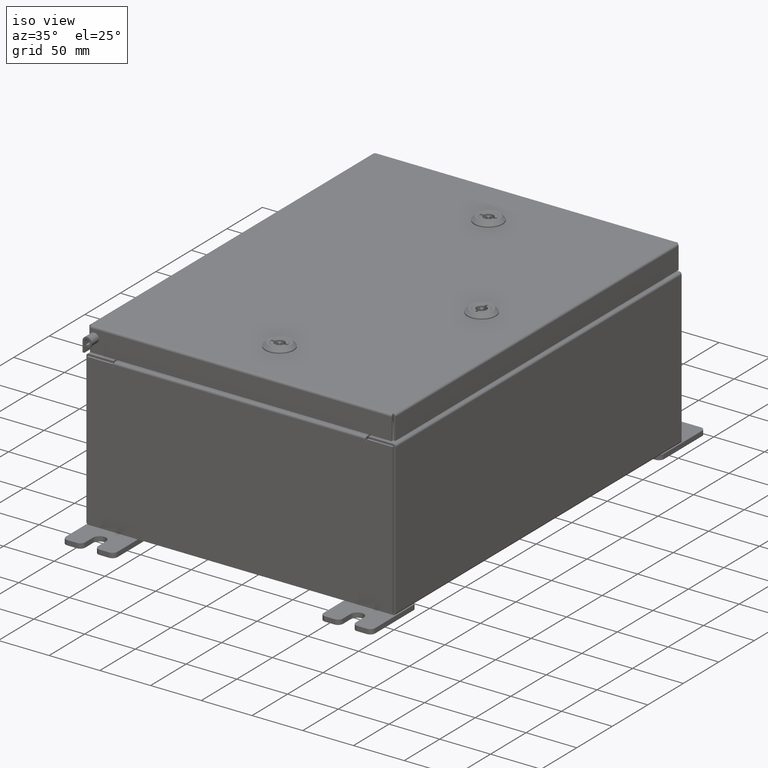
[diagram: clean part render]
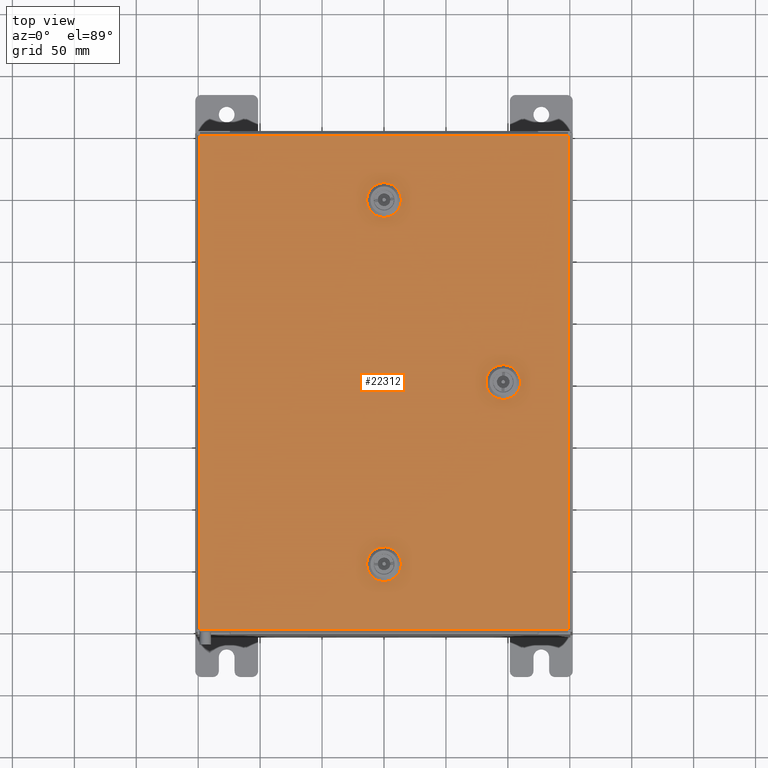
[diagram: tour spotlight — one face highlighted and labeled with its STEP entity id]
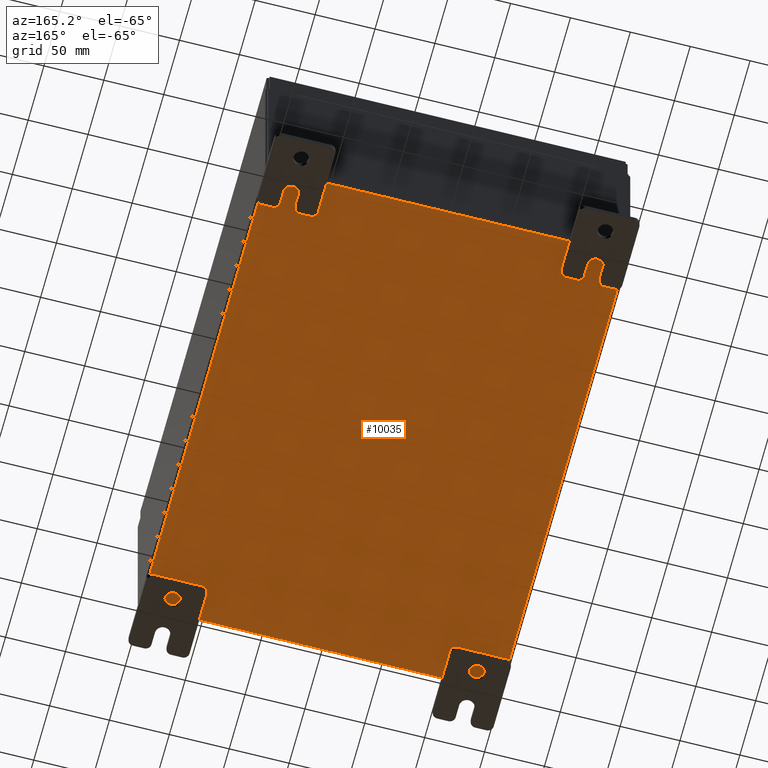
[diagram: tour spotlight — one face highlighted and labeled with its STEP entity id]
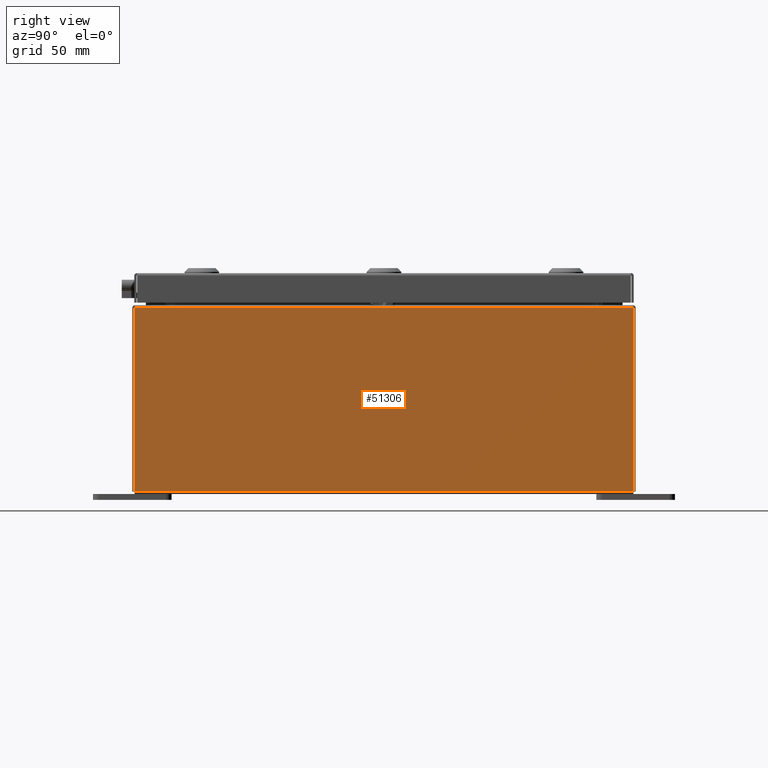
[diagram: tour spotlight — one face highlighted and labeled with its STEP entity id]
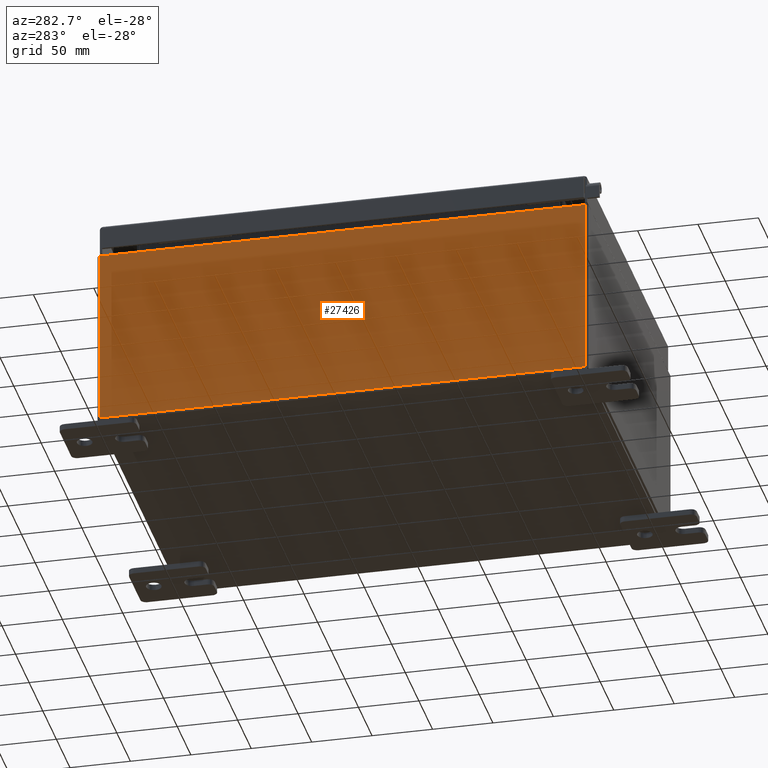
[diagram: tour spotlight — one face highlighted and labeled with its STEP entity id]
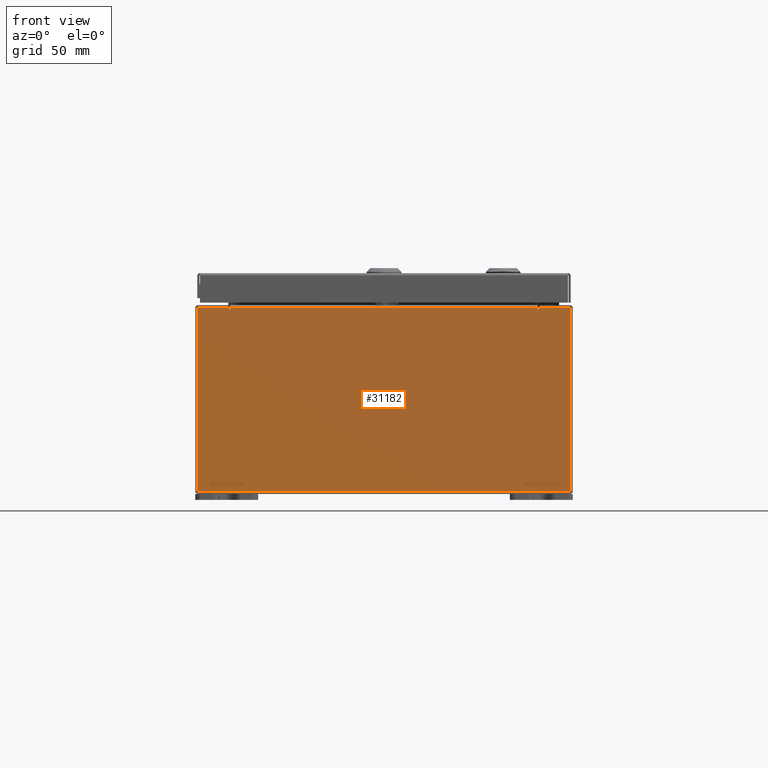
[diagram: tour spotlight — one face highlighted and labeled with its STEP entity id]
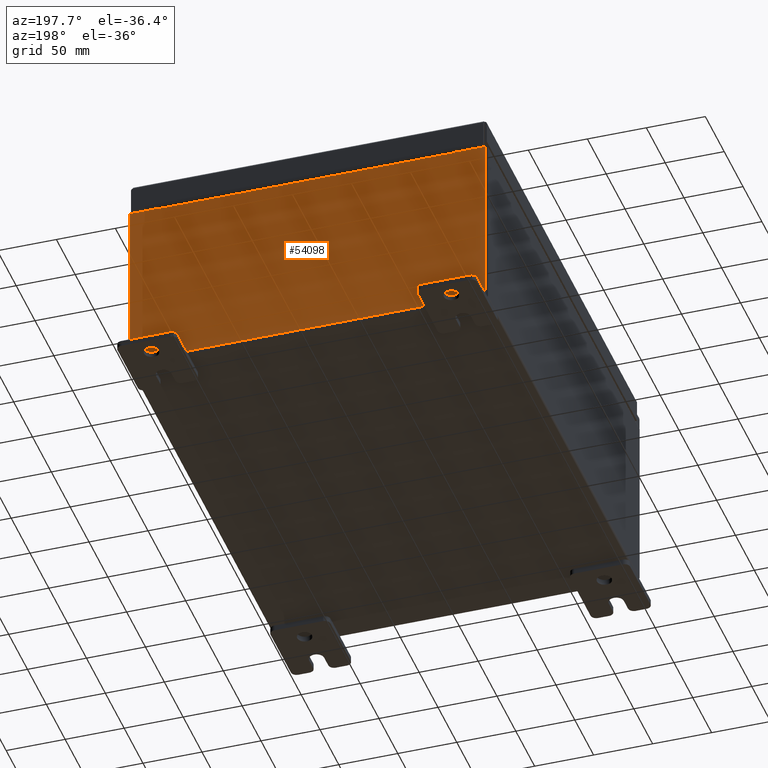
[diagram: tour spotlight — one face highlighted and labeled with its STEP entity id]
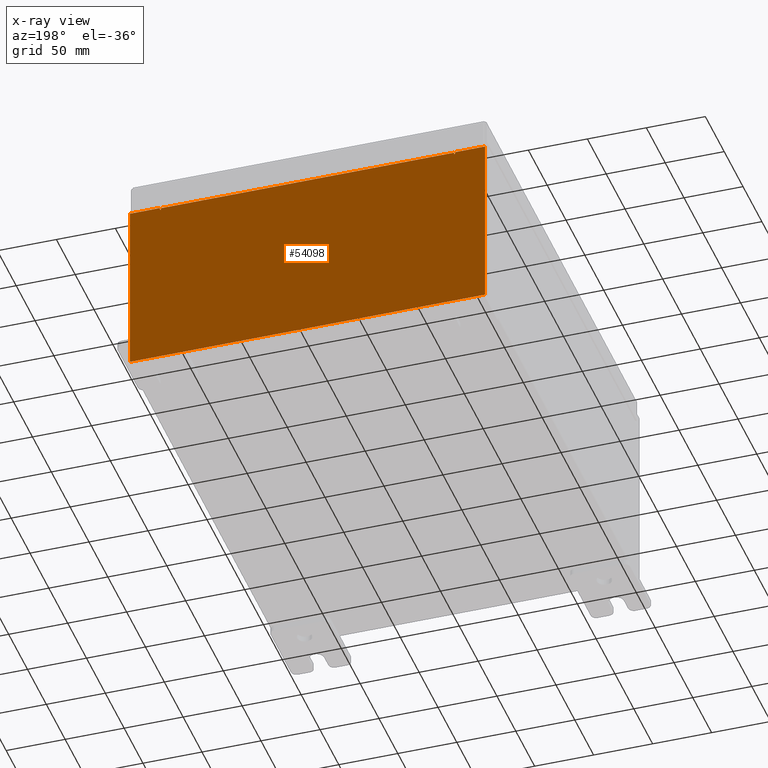
[diagram: x-ray of the same camera — body ghosted, this tour face saturated]
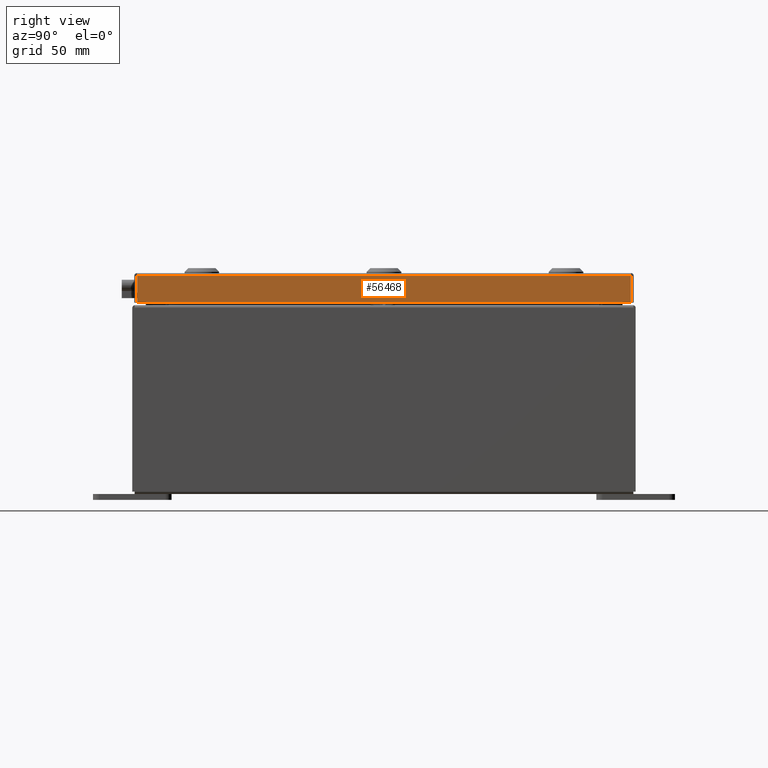
[diagram: tour spotlight — one face highlighted and labeled with its STEP entity id]
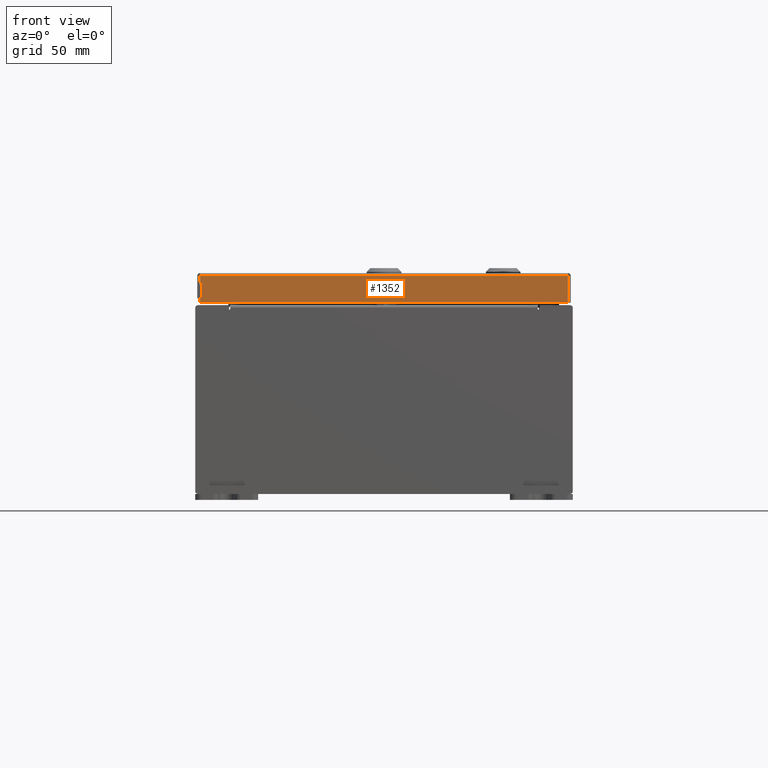
[diagram: tour spotlight — one face highlighted and labeled with its STEP entity id]
A machine part: a face-by-face anatomy tour. The part has 2902 B-rep faces; the first image is the clean iso view, then the 8 largest visible faces are spotlighted one at a time (largest first), each with its STEP entity span.

Face 1 — top view, entity #22312. In plain terms, the highlighted planar face has unit normal (0, 0, -1).
Definition (entity closure, byte-faithful):
#643 = DIRECTION ( 'NONE',  ( 1.000000000000000000, 0.0000000000000000000, 0.0000000000000000000 ) ) ;
#784 = VERTEX_POINT ( 'NONE', #13937 ) ;
#851 = EDGE_CURVE ( 'NONE', #11975, #784, #24934, .T. ) ;
#1834 = CIRCLE ( 'NONE', #60677, 0.4424999999999972800 ) ;
#1917 = ORIENTED_EDGE ( 'NONE', *, *, #56111, .F. ) ;
#2215 = DIRECTION ( 'NONE',  ( -1.000000000000000000, -0.0000000000000000000, -0.0000000000000000000 ) ) ;
#2372 = EDGE_CURVE ( 'NONE', #9604, #14910, #32812, .T. ) ;
#2839 = ORIENTED_EDGE ( 'NONE', *, *, #54834, .T. ) ;
#2981 = DIRECTION ( 'NONE',  ( 1.000000000000000000, 1.369674334534795400E-014, 9.732121487607481600E-029 ) ) ;
#4203 = VERTEX_POINT ( 'NONE', #20782 ) ;
#4543 = VERTEX_POINT ( 'NONE', #21791 ) ;
#5051 = CARTESIAN_POINT ( 'NONE',  ( 0.1994523752678995500, -5.392799999999995800, -4.686755060382689600E-014 ) ) ;
#5304 = EDGE_CURVE ( 'NONE', #56415, #28366, #42363, .T. ) ;
#5746 = CARTESIAN_POINT ( 'NONE',  ( 0.4425000000000126100, -5.787799999999992700, -4.962582086151294400E-014 ) ) ;
#5787 = ORIENTED_EDGE ( 'NONE', *, *, #54111, .F. ) ;
#5892 = CARTESIAN_POINT ( 'NONE',  ( -0.1994523752678657400, 6.182799999999989600, 0.0000000000000000000 ) ) ;
#6091 = EDGE_LOOP ( 'NONE', ( #32065, #54204, #14840, #5787, #39595 ) ) ;
#7290 = DIRECTION ( 'NONE',  ( 0.0000000000000000000, 0.0000000000000000000, -1.000000000000000000 ) ) ;
#7775 = CARTESIAN_POINT ( 'NONE',  ( -5.849800000000000100, 7.849800000000000100, -2.048885995248197400E-016 ) ) ;
#8146 = CARTESIAN_POINT ( 'NONE',  ( 1.529834876451987200E-014, 5.787799999999992700, 0.0000000000000000000 ) ) ;
#8178 = AXIS2_PLACEMENT_3D ( 'NONE', #56030, #27429, #60763 ) ;
#9455 = VECTOR ( 'NONE', #43514, 39.37007874015748100 ) ;
#9603 = CARTESIAN_POINT ( 'NONE',  ( 0.1994523752678995500, -5.392799999999995800, -4.686755060382689600E-014 ) ) ;
#9604 = VERTEX_POINT ( 'NONE', #7775 ) ;
#9663 = CARTESIAN_POINT ( 'NONE',  ( 5.849799999999998300, 7.849800000000000100, -2.219626494852214000E-016 ) ) ;
#10373 = EDGE_CURVE ( 'NONE', #51809, #25966, #59592, .T. ) ;
#10570 = EDGE_CURVE ( 'NONE', #14317, #30184, #34241, .T. ) ;
#10788 = ORIENTED_EDGE ( 'NONE', *, *, #40717, .F. ) ;
#11076 = VECTOR ( 'NONE', #17758, 39.37007874015748100 ) ;
#11657 = EDGE_LOOP ( 'NONE', ( #1917, #49493, #56072, #37395 ) ) ;
#11975 = VERTEX_POINT ( 'NONE', #58110 ) ;
#12555 = LINE ( 'NONE', #27301, #11076 ) ;
#12733 = VERTEX_POINT ( 'NONE', #9603 ) ;
#12925 = DIRECTION ( 'NONE',  ( 1.000000000000000000, 0.0000000000000000000, 0.0000000000000000000 ) ) ;
#13771 = FACE_OUTER_BOUND ( 'NONE', #36941, .T. ) ;
#13824 = CARTESIAN_POINT ( 'NONE',  ( 1.529834876451987200E-014, -5.787799999999992700, -4.962582086151294400E-014 ) ) ;
#13937 = CARTESIAN_POINT ( 'NONE',  ( 0.4425000000000126100, 5.787799999999992700, 0.0000000000000000000 ) ) ;
#14317 = VERTEX_POINT ( 'NONE', #5892 ) ;
#14464 = VECTOR ( 'NONE', #22698, 39.37007874015748100 ) ;
#14840 = ORIENTED_EDGE ( 'NONE', *, *, #52781, .F. ) ;
#14910 = VERTEX_POINT ( 'NONE', #14953 ) ;
#14953 = CARTESIAN_POINT ( 'NONE',  ( -5.849800000000000100, -7.849800000000000100, -2.219626494852214000E-016 ) ) ;
#15793 = EDGE_CURVE ( 'NONE', #19356, #54212, #29044, .T. ) ;
#15873 = AXIS2_PLACEMENT_3D ( 'NONE', #29347, #21265, #19777 ) ;
#16048 = ORIENTED_EDGE ( 'NONE', *, *, #41933, .T. ) ;
#16417 = VECTOR ( 'NONE', #52252, 39.37007874015748100 ) ;
#16513 = EDGE_CURVE ( 'NONE', #24836, #54382, #52179, .T. ) ;
#17207 = DIRECTION ( 'NONE',  ( 0.0000000000000000000, 0.0000000000000000000, 1.000000000000000000 ) ) ;
#17632 = VECTOR ( 'NONE', #2215, 39.37007874015748100 ) ;
#17758 = DIRECTION ( 'NONE',  ( -1.000000000000000000, 1.369674334534795400E-014, 0.0000000000000000000 ) ) ;
#18383 = LINE ( 'NONE', #36231, #54941 ) ;
#18615 = DIRECTION ( 'NONE',  ( 0.0000000000000000000, 1.000000000000000000, 6.982962677686269100E-015 ) ) ;
#19356 = VERTEX_POINT ( 'NONE', #33285 ) ;
#19777 = DIRECTION ( 'NONE',  ( 1.000000000000000000, 0.0000000000000000000, 0.0000000000000000000 ) ) ;
#20499 = VECTOR ( 'NONE', #46170, 39.37007874015748100 ) ;
#20782 = CARTESIAN_POINT ( 'NONE',  ( 4.182800000000001200, 0.1994523752679009100, 0.0000000000000000000 ) ) ;
#21265 = DIRECTION ( 'NONE',  ( 0.0000000000000000000, 0.0000000000000000000, 1.000000000000000000 ) ) ;
#21560 = DIRECTION ( 'NONE',  ( 0.0000000000000000000, -1.000000000000000000, 0.0000000000000000000 ) ) ;
#21791 = CARTESIAN_POINT ( 'NONE',  ( 4.182800000000003800, -0.1994523752678676000, 0.0000000000000000000 ) ) ;
#21998 = LINE ( 'NONE', #41374, #20499 ) ;
#22312 = ADVANCED_FACE ( 'NONE', ( #27894, #26440, #51808, #13771 ), #59513, .F. ) ;
#22698 = DIRECTION ( 'NONE',  ( -5.478697338139235000E-015, 1.000000000000000000, -0.0000000000000000000 ) ) ;
#23683 = CARTESIAN_POINT ( 'NONE',  ( 5.849799999999998300, -7.849800000000000100, -7.683322482180740400E-016 ) ) ;
#23946 = AXIS2_PLACEMENT_3D ( 'NONE', #56477, #27867, #61216 ) ;
#24780 = ORIENTED_EDGE ( 'NONE', *, *, #50610, .F. ) ;
#24808 = AXIS2_PLACEMENT_3D ( 'NONE', #45557, #49342, #48442 ) ;
#24836 = VERTEX_POINT ( 'NONE', #57946 ) ;
#24934 = CIRCLE ( 'NONE', #15873, 0.4424999999999973400 ) ;
#25298 = AXIS2_PLACEMENT_3D ( 'NONE', #35765, #7290, #40556 ) ;
#25966 = VERTEX_POINT ( 'NONE', #46889 ) ;
#26431 = CARTESIAN_POINT ( 'NONE',  ( 3.392800000000013600, 0.1994523752679053800, 0.0000000000000000000 ) ) ;
#26440 = FACE_BOUND ( 'NONE', #6091, .T. ) ;
#27301 = CARTESIAN_POINT ( 'NONE',  ( 0.1994523752679067700, 6.182799999999984300, 0.0000000000000000000 ) ) ;
#27429 = DIRECTION ( 'NONE',  ( 0.0000000000000000000, 0.0000000000000000000, 1.000000000000000000 ) ) ;
#27609 = CARTESIAN_POINT ( 'NONE',  ( -0.1994523752678657400, -6.182799999999990500, 0.0000000000000000000 ) ) ;
#27867 = DIRECTION ( 'NONE',  ( -0.0000000000000000000, -6.982962677686266700E-015, 1.000000000000000000 ) ) ;
#27894 = FACE_BOUND ( 'NONE', #11657, .T. ) ;
#28366 = VERTEX_POINT ( 'NONE', #27609 ) ;
#29044 = LINE ( 'NONE', #23683, #16417 ) ;
#29056 = DIRECTION ( 'NONE',  ( 0.0000000000000000000, 0.0000000000000000000, 1.000000000000000000 ) ) ;
#29347 = CARTESIAN_POINT ( 'NONE',  ( 1.529834876451987200E-014, 5.787799999999992700, 0.0000000000000000000 ) ) ;
#29538 = CIRCLE ( 'NONE', #40658, 0.4424999999999973400 ) ;
#30184 = VERTEX_POINT ( 'NONE', #38751 ) ;
#30428 = EDGE_LOOP ( 'NONE', ( #10788, #30956, #24780, #56264, #40058 ) ) ;
#30626 = CARTESIAN_POINT ( 'NONE',  ( 5.849799999999998300, 7.849800000000000100, -2.219626494852214000E-016 ) ) ;
#30851 = EDGE_CURVE ( 'NONE', #4203, #51809, #1834, .T. ) ;
#30956 = ORIENTED_EDGE ( 'NONE', *, *, #10570, .F. ) ;
#31726 = LINE ( 'NONE', #30626, #17632 ) ;
#32065 = ORIENTED_EDGE ( 'NONE', *, *, #52285, .F. ) ;
#32453 = CARTESIAN_POINT ( 'NONE',  ( 3.392800000000013600, 0.1994523752679053200, 0.0000000000000000000 ) ) ;
#32812 = LINE ( 'NONE', #39679, #44027 ) ;
#33285 = CARTESIAN_POINT ( 'NONE',  ( 5.849799999999998300, -7.849800000000000100, -7.683322482180740400E-016 ) ) ;
#34241 = CIRCLE ( 'NONE', #8178, 0.4424999999999979500 ) ;
#34763 = LINE ( 'NONE', #5051, #9455 ) ;
#35089 = CARTESIAN_POINT ( 'NONE',  ( -0.1994523752678689600, -5.392799999999994900, -4.686755060382689000E-014 ) ) ;
#35765 = CARTESIAN_POINT ( 'NONE',  ( 0.0000000000000000000, 0.0000000000000000000, 0.0000000000000000000 ) ) ;
#36231 = CARTESIAN_POINT ( 'NONE',  ( 0.1994523752679067700, -6.182799999999984300, -5.238409111919896100E-014 ) ) ;
#36318 = LINE ( 'NONE', #37218, #60178 ) ;
#36841 = CARTESIAN_POINT ( 'NONE',  ( 4.182800000000001200, 0.1994523752679009100, 0.0000000000000000000 ) ) ;
#36941 = EDGE_LOOP ( 'NONE', ( #2839, #43964, #16048, #47412 ) ) ;
#37218 = CARTESIAN_POINT ( 'NONE',  ( 0.1994523752678995500, 5.392799999999995800, 0.0000000000000000000 ) ) ;
#37298 = CIRCLE ( 'NONE', #42395, 0.4424999999999977800 ) ;
#37395 = ORIENTED_EDGE ( 'NONE', *, *, #30851, .F. ) ;
#38751 = CARTESIAN_POINT ( 'NONE',  ( -0.1994523752678689600, 5.392799999999994900, 0.0000000000000000000 ) ) ;
#39595 = ORIENTED_EDGE ( 'NONE', *, *, #16513, .F. ) ;
#39679 = CARTESIAN_POINT ( 'NONE',  ( -5.849800000000000100, 7.849800000000000100, -2.048885995248197400E-016 ) ) ;
#40058 = ORIENTED_EDGE ( 'NONE', *, *, #851, .F. ) ;
#40556 = DIRECTION ( 'NONE',  ( -1.000000000000000000, 0.0000000000000000000, -0.0000000000000000000 ) ) ;
#40658 = AXIS2_PLACEMENT_3D ( 'NONE', #8146, #41433, #12925 ) ;
#40717 = EDGE_CURVE ( 'NONE', #30184, #11975, #36318, .T. ) ;
#41374 = CARTESIAN_POINT ( 'NONE',  ( -5.849800000000000100, -7.849800000000000100, -2.219626494852214000E-016 ) ) ;
#41433 = DIRECTION ( 'NONE',  ( 0.0000000000000000000, 0.0000000000000000000, 1.000000000000000000 ) ) ;
#41933 = EDGE_CURVE ( 'NONE', #54212, #9604, #31726, .T. ) ;
#42363 = CIRCLE ( 'NONE', #24808, 0.4424999999999983400 ) ;
#42395 = AXIS2_PLACEMENT_3D ( 'NONE', #45710, #17207, #50530 ) ;
#42864 = VERTEX_POINT ( 'NONE', #50394 ) ;
#43514 = DIRECTION ( 'NONE',  ( -1.000000000000000000, 2.739348669069617500E-015, 1.946424297521515400E-029 ) ) ;
#43964 = ORIENTED_EDGE ( 'NONE', *, *, #15793, .T. ) ;
#44027 = VECTOR ( 'NONE', #21560, 39.37007874015748100 ) ;
#45557 = CARTESIAN_POINT ( 'NONE',  ( 1.529834876451987200E-014, -5.787799999999992700, -4.962582086151294400E-014 ) ) ;
#45710 = CARTESIAN_POINT ( 'NONE',  ( 3.787800000000006500, 1.529834876451990400E-014, 0.0000000000000000000 ) ) ;
#46170 = DIRECTION ( 'NONE',  ( 1.000000000000000000, -0.0000000000000000000, -0.0000000000000000000 ) ) ;
#46889 = CARTESIAN_POINT ( 'NONE',  ( 3.392800000000009600, -0.1994523752678671000, 0.0000000000000000000 ) ) ;
#47130 = DIRECTION ( 'NONE',  ( -0.0000000000000000000, -6.982962677686266700E-015, 1.000000000000000000 ) ) ;
#47412 = ORIENTED_EDGE ( 'NONE', *, *, #2372, .T. ) ;
#48442 = DIRECTION ( 'NONE',  ( 0.0000000000000000000, 1.000000000000000000, 6.982962677686252500E-015 ) ) ;
#49342 = DIRECTION ( 'NONE',  ( -0.0000000000000000000, -6.982962677686266700E-015, 1.000000000000000000 ) ) ;
#49493 = ORIENTED_EDGE ( 'NONE', *, *, #59442, .F. ) ;
#49599 = CIRCLE ( 'NONE', #58283, 0.4424999999999972800 ) ;
#50006 = DIRECTION ( 'NONE',  ( -9.587720341743565900E-015, -1.000000000000000000, 0.0000000000000000000 ) ) ;
#50394 = CARTESIAN_POINT ( 'NONE',  ( 0.1994523752679068500, 6.182799999999984300, 0.0000000000000000000 ) ) ;
#50530 = DIRECTION ( 'NONE',  ( 1.000000000000000000, 0.0000000000000000000, 0.0000000000000000000 ) ) ;
#50610 = EDGE_CURVE ( 'NONE', #42864, #14317, #12555, .T. ) ;
#51633 = DIRECTION ( 'NONE',  ( 1.000000000000000000, 2.739348669069617500E-015, -0.0000000000000000000 ) ) ;
#51808 = FACE_BOUND ( 'NONE', #30428, .T. ) ;
#51809 = VERTEX_POINT ( 'NONE', #32453 ) ;
#52179 = CIRCLE ( 'NONE', #23946, 0.4424999999999972800 ) ;
#52252 = DIRECTION ( 'NONE',  ( 0.0000000000000000000, 1.000000000000000000, 0.0000000000000000000 ) ) ;
#52285 = EDGE_CURVE ( 'NONE', #28366, #24836, #18383, .T. ) ;
#52370 = EDGE_CURVE ( 'NONE', #784, #42864, #29538, .T. ) ;
#52512 = LINE ( 'NONE', #36841, #14464 ) ;
#52781 = EDGE_CURVE ( 'NONE', #12733, #56415, #34763, .T. ) ;
#54111 = EDGE_CURVE ( 'NONE', #54382, #12733, #49599, .T. ) ;
#54204 = ORIENTED_EDGE ( 'NONE', *, *, #5304, .F. ) ;
#54212 = VERTEX_POINT ( 'NONE', #9663 ) ;
#54382 = VERTEX_POINT ( 'NONE', #5746 ) ;
#54834 = EDGE_CURVE ( 'NONE', #14910, #19356, #21998, .T. ) ;
#54941 = VECTOR ( 'NONE', #2981, 39.37007874015748100 ) ;
#56030 = CARTESIAN_POINT ( 'NONE',  ( 1.529834876451987200E-014, 5.787799999999992700, 0.0000000000000000000 ) ) ;
#56072 = ORIENTED_EDGE ( 'NONE', *, *, #10373, .F. ) ;
#56111 = EDGE_CURVE ( 'NONE', #4543, #4203, #52512, .T. ) ;
#56264 = ORIENTED_EDGE ( 'NONE', *, *, #52370, .F. ) ;
#56415 = VERTEX_POINT ( 'NONE', #35089 ) ;
#56477 = CARTESIAN_POINT ( 'NONE',  ( 1.529834876451987200E-014, -5.787799999999992700, -4.962582086151294400E-014 ) ) ;
#57638 = CARTESIAN_POINT ( 'NONE',  ( 3.787800000000006500, 1.529834876451990400E-014, 0.0000000000000000000 ) ) ;
#57946 = CARTESIAN_POINT ( 'NONE',  ( 0.1994523752679070700, -6.182799999999984300, -5.238409111919896100E-014 ) ) ;
#58110 = CARTESIAN_POINT ( 'NONE',  ( 0.1994523752678995500, 5.392799999999995800, 0.0000000000000000000 ) ) ;
#58129 = VECTOR ( 'NONE', #50006, 39.37007874015748100 ) ;
#58283 = AXIS2_PLACEMENT_3D ( 'NONE', #13824, #47130, #18615 ) ;
#59442 = EDGE_CURVE ( 'NONE', #25966, #4543, #37298, .T. ) ;
#59513 = PLANE ( 'NONE',  #25298 ) ;
#59592 = LINE ( 'NONE', #26431, #58129 ) ;
#60178 = VECTOR ( 'NONE', #51633, 39.37007874015748100 ) ;
#60677 = AXIS2_PLACEMENT_3D ( 'NONE', #57638, #29056, #643 ) ;
#60763 = DIRECTION ( 'NONE',  ( 1.000000000000000000, 0.0000000000000000000, 0.0000000000000000000 ) ) ;
#61216 = DIRECTION ( 'NONE',  ( 0.0000000000000000000, 1.000000000000000000, 6.982962677686269100E-015 ) ) ;

Face 2 — auxiliary view, entity #10035. In plain terms, the highlighted planar face has unit normal (0, 0, -1).
Definition (entity closure, byte-faithful):
#78 = ORIENTED_EDGE ( 'NONE', *, *, #6381, .T. ) ;
#149 = CARTESIAN_POINT ( 'NONE',  ( -6.000000000000001800, -7.925300000000000900, -0.07470000000000000300 ) ) ;
#3015 = AXIS2_PLACEMENT_3D ( 'NONE', #43557, #15034, #48334 ) ;
#4922 = DIRECTION ( 'NONE',  ( 1.000000000000000000, 0.0000000000000000000, 0.0000000000000000000 ) ) ;
#6381 = EDGE_CURVE ( 'NONE', #6820, #38070, #37812, .T. ) ;
#6820 = VERTEX_POINT ( 'NONE', #16558 ) ;
#6840 = LINE ( 'NONE', #57722, #54533 ) ;
#8537 = LINE ( 'NONE', #61296, #32326 ) ;
#10035 = ADVANCED_FACE ( 'NONE', ( #30502 ), #14827, .T. ) ;
#13560 = EDGE_CURVE ( 'NONE', #6820, #61178, #56467, .T. ) ;
#14827 = PLANE ( 'NONE',  #3015 ) ;
#15034 = DIRECTION ( 'NONE',  ( 0.0000000000000000000, 0.0000000000000000000, -1.000000000000000000 ) ) ;
#16558 = CARTESIAN_POINT ( 'NONE',  ( -5.912300000000001000, -7.925300000000000900, -0.07469999999999874000 ) ) ;
#18914 = CARTESIAN_POINT ( 'NONE',  ( 5.912299999999994800, -7.925300000000000900, -0.07470000000000000300 ) ) ;
#20310 = CARTESIAN_POINT ( 'NONE',  ( -5.912300000000001000, 7.925299999999998200, -0.07470000000000000300 ) ) ;
#22175 = EDGE_LOOP ( 'NONE', ( #39323, #78, #35865, #38410 ) ) ;
#22282 = CARTESIAN_POINT ( 'NONE',  ( -5.912300000000001000, -7.925300000000000900, -0.07469999999999874000 ) ) ;
#27935 = DIRECTION ( 'NONE',  ( -0.0000000000000000000, -1.000000000000000000, -0.0000000000000000000 ) ) ;
#28492 = VERTEX_POINT ( 'NONE', #61585 ) ;
#30502 = FACE_OUTER_BOUND ( 'NONE', #22175, .T. ) ;
#32326 = VECTOR ( 'NONE', #27935, 39.37007874015748100 ) ;
#34096 = EDGE_CURVE ( 'NONE', #28492, #38070, #6840, .T. ) ;
#35865 = ORIENTED_EDGE ( 'NONE', *, *, #34096, .F. ) ;
#37812 = LINE ( 'NONE', #22282, #39331 ) ;
#38070 = VERTEX_POINT ( 'NONE', #20310 ) ;
#38410 = ORIENTED_EDGE ( 'NONE', *, *, #55377, .T. ) ;
#39323 = ORIENTED_EDGE ( 'NONE', *, *, #13560, .F. ) ;
#39331 = VECTOR ( 'NONE', #50824, 39.37007874015748100 ) ;
#43557 = CARTESIAN_POINT ( 'NONE',  ( 0.0000000000000000000, 0.0000000000000000000, -0.07470000000000000300 ) ) ;
#48320 = DIRECTION ( 'NONE',  ( -1.000000000000000000, -0.0000000000000000000, -0.0000000000000000000 ) ) ;
#48334 = DIRECTION ( 'NONE',  ( -1.000000000000000000, 0.0000000000000000000, -0.0000000000000000000 ) ) ;
#50824 = DIRECTION ( 'NONE',  ( -0.0000000000000000000, 1.000000000000000000, -8.208677865577646300E-017 ) ) ;
#54533 = VECTOR ( 'NONE', #48320, 39.37007874015748100 ) ;
#54976 = VECTOR ( 'NONE', #4922, 39.37007874015748100 ) ;
#55377 = EDGE_CURVE ( 'NONE', #28492, #61178, #8537, .T. ) ;
#56467 = LINE ( 'NONE', #149, #54976 ) ;
#57722 = CARTESIAN_POINT ( 'NONE',  ( -6.000000000000001800, 7.925299999999998200, -0.07470000000000000300 ) ) ;
#61178 = VERTEX_POINT ( 'NONE', #18914 ) ;
#61296 = CARTESIAN_POINT ( 'NONE',  ( 5.912299999999999200, 7.925300000000000000, -0.07469999999999994700 ) ) ;
#61585 = CARTESIAN_POINT ( 'NONE',  ( 5.912299999999999200, 7.925300000000000000, -0.07469999999999994700 ) ) ;

Face 3 — right view, entity #51306. In plain terms, the highlighted planar face has unit normal (-1, 0, 0).
Definition (entity closure, byte-faithful):
#1268 = ORIENTED_EDGE ( 'NONE', *, *, #6303, .T. ) ;
#1426 = ORIENTED_EDGE ( 'NONE', *, *, #21077, .F. ) ;
#2049 = EDGE_LOOP ( 'NONE', ( #4790, #52533, #1426, #1268 ) ) ;
#4341 = FACE_OUTER_BOUND ( 'NONE', #2049, .T. ) ;
#4642 = LINE ( 'NONE', #35140, #41078 ) ;
#4790 = ORIENTED_EDGE ( 'NONE', *, *, #46413, .T. ) ;
#6303 = EDGE_CURVE ( 'NONE', #46514, #29975, #53534, .T. ) ;
#7871 = CARTESIAN_POINT ( 'NONE',  ( 5.999999999999999100, 7.925300000000000000, 0.01299999999999984700 ) ) ;
#8280 = CARTESIAN_POINT ( 'NONE',  ( 6.000000000000020400, -7.925300000000000000, 5.837600000000001000 ) ) ;
#9115 = CARTESIAN_POINT ( 'NONE',  ( 5.999999999999999100, -7.925300000000000000, 0.01299999999999984700 ) ) ;
#9400 = CARTESIAN_POINT ( 'NONE',  ( 6.000000000000020400, 7.925300000000000000, 5.837600000000001000 ) ) ;
#9873 = CARTESIAN_POINT ( 'NONE',  ( 5.999999999999999100, 0.0000000000000000000, -2.128460460517708500E-014 ) ) ;
#13319 = VERTEX_POINT ( 'NONE', #31976 ) ;
#14009 = CARTESIAN_POINT ( 'NONE',  ( 5.999999999999999100, -7.925300000000000900, -1.982302697000672100E-014 ) ) ;
#14662 = DIRECTION ( 'NONE',  ( -1.000000000000000000, 0.0000000000000000000, 3.503965158194250900E-015 ) ) ;
#15490 = VECTOR ( 'NONE', #21551, 39.37007874015748100 ) ;
#17927 = EDGE_CURVE ( 'NONE', #19592, #13319, #38646, .T. ) ;
#19592 = VERTEX_POINT ( 'NONE', #8280 ) ;
#21077 = EDGE_CURVE ( 'NONE', #46514, #13319, #22795, .T. ) ;
#21551 = DIRECTION ( 'NONE',  ( 3.503965158194251300E-015, 0.0000000000000000000, 1.000000000000000000 ) ) ;
#22795 = LINE ( 'NONE', #9115, #33961 ) ;
#29975 = VERTEX_POINT ( 'NONE', #9400 ) ;
#31393 = AXIS2_PLACEMENT_3D ( 'NONE', #9873, #14662, #47964 ) ;
#31976 = CARTESIAN_POINT ( 'NONE',  ( 5.999999999999999100, -7.925300000000000000, 0.01299999999999984500 ) ) ;
#33127 = DIRECTION ( 'NONE',  ( -3.503965158194251300E-015, -1.844192188523290500E-016, -1.000000000000000000 ) ) ;
#33961 = VECTOR ( 'NONE', #56620, 39.37007874015748100 ) ;
#35140 = CARTESIAN_POINT ( 'NONE',  ( 6.000000000000020400, 7.925300000000000000, 5.837600000000001000 ) ) ;
#38392 = PLANE ( 'NONE',  #31393 ) ;
#38646 = LINE ( 'NONE', #14009, #60968 ) ;
#39959 = DIRECTION ( 'NONE',  ( -0.0000000000000000000, -1.000000000000000000, -0.0000000000000000000 ) ) ;
#41078 = VECTOR ( 'NONE', #39959, 39.37007874015748100 ) ;
#46413 = EDGE_CURVE ( 'NONE', #29975, #19592, #4642, .T. ) ;
#46514 = VERTEX_POINT ( 'NONE', #7871 ) ;
#47964 = DIRECTION ( 'NONE',  ( 3.503965158194250900E-015, 0.0000000000000000000, 1.000000000000000000 ) ) ;
#51306 = ADVANCED_FACE ( 'NONE', ( #4341 ), #38392, .F. ) ;
#52533 = ORIENTED_EDGE ( 'NONE', *, *, #17927, .T. ) ;
#53534 = LINE ( 'NONE', #59632, #15490 ) ;
#56620 = DIRECTION ( 'NONE',  ( -0.0000000000000000000, -1.000000000000000000, -0.0000000000000000000 ) ) ;
#59632 = CARTESIAN_POINT ( 'NONE',  ( 5.999999999999999100, 7.925299999999998200, -2.128460460517708500E-014 ) ) ;
#60968 = VECTOR ( 'NONE', #33127, 39.37007874015748100 ) ;

Face 4 — auxiliary view, entity #27426. In plain terms, the highlighted planar face has unit normal (1, 0, 0).
Definition (entity closure, byte-faithful):
#899 = VERTEX_POINT ( 'NONE', #15021 ) ;
#1471 = DIRECTION ( 'NONE',  ( 2.415631001295207100E-031, 1.000000000000000000, -6.893992640440775600E-017 ) ) ;
#2941 = DIRECTION ( 'NONE',  ( 3.503965158194252100E-015, 0.0000000000000000000, -1.000000000000000000 ) ) ;
#2954 = VECTOR ( 'NONE', #5581, 39.37007874015748100 ) ;
#4937 = ORIENTED_EDGE ( 'NONE', *, *, #6220, .T. ) ;
#5581 = DIRECTION ( 'NONE',  ( -3.503965158194252100E-015, 1.844192188523290500E-016, 1.000000000000000000 ) ) ;
#6220 = EDGE_CURVE ( 'NONE', #41468, #40020, #55008, .T. ) ;
#13441 = CARTESIAN_POINT ( 'NONE',  ( -6.000000000000023100, -7.925300000000000000, 5.837599999999999200 ) ) ;
#15021 = CARTESIAN_POINT ( 'NONE',  ( -6.000000000000001800, 7.925299999999998200, 0.01299999999999974100 ) ) ;
#16434 = CARTESIAN_POINT ( 'NONE',  ( -6.000000000000001800, -7.925300000000000900, 0.01300000000000094000 ) ) ;
#17406 = EDGE_CURVE ( 'NONE', #22239, #41468, #40884, .T. ) ;
#20129 = DIRECTION ( 'NONE',  ( 1.000000000000000000, 0.0000000000000000000, 3.503965158194251300E-015 ) ) ;
#21851 = CARTESIAN_POINT ( 'NONE',  ( -6.000000000000001800, 7.925299999999998200, -2.128460460517709800E-014 ) ) ;
#22128 = EDGE_LOOP ( 'NONE', ( #4937, #34160, #54017, #28207 ) ) ;
#22239 = VERTEX_POINT ( 'NONE', #16434 ) ;
#25889 = VECTOR ( 'NONE', #1471, 39.37007874015748100 ) ;
#27426 = ADVANCED_FACE ( 'NONE', ( #53870 ), #39072, .F. ) ;
#28207 = ORIENTED_EDGE ( 'NONE', *, *, #17406, .T. ) ;
#30647 = DIRECTION ( 'NONE',  ( 0.0000000000000000000, 1.000000000000000000, 0.0000000000000000000 ) ) ;
#31821 = AXIS2_PLACEMENT_3D ( 'NONE', #53280, #20129, #53487 ) ;
#32682 = CARTESIAN_POINT ( 'NONE',  ( -6.000000000000022200, 7.925299999999998200, 5.837599999999999200 ) ) ;
#34045 = CARTESIAN_POINT ( 'NONE',  ( -6.000000000000001800, -7.925300000000000900, -1.982302697000673400E-014 ) ) ;
#34160 = ORIENTED_EDGE ( 'NONE', *, *, #42865, .T. ) ;
#38569 = LINE ( 'NONE', #48883, #25889 ) ;
#39072 = PLANE ( 'NONE',  #31821 ) ;
#40020 = VERTEX_POINT ( 'NONE', #32682 ) ;
#40884 = LINE ( 'NONE', #34045, #2954 ) ;
#41191 = EDGE_CURVE ( 'NONE', #22239, #899, #38569, .T. ) ;
#41400 = VECTOR ( 'NONE', #2941, 39.37007874015748100 ) ;
#41468 = VERTEX_POINT ( 'NONE', #13441 ) ;
#42865 = EDGE_CURVE ( 'NONE', #40020, #899, #54123, .T. ) ;
#48883 = CARTESIAN_POINT ( 'NONE',  ( -6.000000000000001800, 7.925299999999998200, 0.01299999999999984700 ) ) ;
#53280 = CARTESIAN_POINT ( 'NONE',  ( -6.000000000000001800, 0.0000000000000000000, -2.128460460517709800E-014 ) ) ;
#53487 = DIRECTION ( 'NONE',  ( 3.503965158194251300E-015, 0.0000000000000000000, -1.000000000000000000 ) ) ;
#53870 = FACE_OUTER_BOUND ( 'NONE', #22128, .T. ) ;
#54017 = ORIENTED_EDGE ( 'NONE', *, *, #41191, .F. ) ;
#54123 = LINE ( 'NONE', #21851, #41400 ) ;
#55008 = LINE ( 'NONE', #59230, #56501 ) ;
#56501 = VECTOR ( 'NONE', #30647, 39.37007874015748100 ) ;
#59230 = CARTESIAN_POINT ( 'NONE',  ( -6.000000000000023100, -7.925300000000000900, 5.837599999999999200 ) ) ;

Face 5 — front view, entity #31182. In plain terms, the highlighted planar face has unit normal (-0, 1, -0).
Definition (entity closure, byte-faithful):
#510 = CARTESIAN_POINT ( 'NONE',  ( 5.925300000000001800, 0.0000000000000000000, 2.925300000000000000 ) ) ;
#906 = LINE ( 'NONE', #52402, #61163 ) ;
#1132 = LINE ( 'NONE', #11046, #2622 ) ;
#2074 = EDGE_CURVE ( 'NONE', #7742, #16863, #906, .T. ) ;
#2622 = VECTOR ( 'NONE', #44342, 39.37007874015748100 ) ;
#2795 = DIRECTION ( 'NONE',  ( 0.0000000000000000000, 0.0000000000000000000, -1.000000000000000000 ) ) ;
#2902 = VERTEX_POINT ( 'NONE', #32644 ) ;
#3442 = VECTOR ( 'NONE', #8033, 39.37007874015748100 ) ;
#4726 = ORIENTED_EDGE ( 'NONE', *, *, #60732, .F. ) ;
#5089 = DIRECTION ( 'NONE',  ( 0.0000000000000000000, 0.0000000000000000000, -1.000000000000000000 ) ) ;
#6553 = DIRECTION ( 'NONE',  ( 0.0000000000000000000, 0.0000000000000000000, 1.000000000000000000 ) ) ;
#6945 = ORIENTED_EDGE ( 'NONE', *, *, #36971, .T. ) ;
#7634 = ORIENTED_EDGE ( 'NONE', *, *, #17696, .T. ) ;
#7742 = VERTEX_POINT ( 'NONE', #19482 ) ;
#7944 = CARTESIAN_POINT ( 'NONE',  ( 0.0000000000000000000, 0.0000000000000000000, 0.0000000000000000000 ) ) ;
#8033 = DIRECTION ( 'NONE',  ( 1.000000000000000000, 0.0000000000000000000, 0.0000000000000000000 ) ) ;
#8570 = EDGE_CURVE ( 'NONE', #50845, #7742, #18711, .T. ) ;
#9783 = AXIS2_PLACEMENT_3D ( 'NONE', #21391, #54708, #26141 ) ;
#10469 = VECTOR ( 'NONE', #25971, 39.37007874015748100 ) ;
#11046 = CARTESIAN_POINT ( 'NONE',  ( -5.925299999999999100, 0.0000000000000000000, 2.925300000000000000 ) ) ;
#11231 = ORIENTED_EDGE ( 'NONE', *, *, #23322, .F. ) ;
#11582 = CARTESIAN_POINT ( 'NONE',  ( -4.924549999999997300, -0.0000000000000000000, 0.0000000000000000000 ) ) ;
#11780 = CARTESIAN_POINT ( 'NONE',  ( -5.925299999999999100, 0.0000000000000000000, 2.925300000000000000 ) ) ;
#13895 = ORIENTED_EDGE ( 'NONE', *, *, #2074, .T. ) ;
#14672 = VERTEX_POINT ( 'NONE', #27423 ) ;
#15706 = CARTESIAN_POINT ( 'NONE',  ( 5.925300000000001800, 0.0000000000000000000, 2.925300000000000000 ) ) ;
#15902 = CARTESIAN_POINT ( 'NONE',  ( 4.887200000000001800, 0.0000000000000000000, 0.0000000000000000000 ) ) ;
#16374 = VERTEX_POINT ( 'NONE', #17510 ) ;
#16563 = DIRECTION ( 'NONE',  ( 1.000000000000000000, 0.0000000000000000000, 0.0000000000000000000 ) ) ;
#16623 = LINE ( 'NONE', #11582, #30716 ) ;
#16796 = LINE ( 'NONE', #15902, #40623 ) ;
#16838 = CARTESIAN_POINT ( 'NONE',  ( -4.924549999999997300, 0.0000000000000000000, 2.874949999999999700 ) ) ;
#16863 = VERTEX_POINT ( 'NONE', #34736 ) ;
#17509 = DIRECTION ( 'NONE',  ( 0.0000000000000000000, -0.0000000000000000000, -1.000000000000000000 ) ) ;
#17510 = CARTESIAN_POINT ( 'NONE',  ( 4.887200000000001800, 0.0000000000000000000, 2.912300000000000100 ) ) ;
#17696 = EDGE_CURVE ( 'NONE', #2902, #14672, #20787, .T. ) ;
#18142 = FACE_OUTER_BOUND ( 'NONE', #22925, .T. ) ;
#18209 = DIRECTION ( 'NONE',  ( -1.000000000000000000, -0.0000000000000000000, -0.0000000000000000000 ) ) ;
#18711 = LINE ( 'NONE', #510, #28363 ) ;
#19236 = CARTESIAN_POINT ( 'NONE',  ( -4.887199999999997300, -1.707404996040164500E-016, 2.912300000000000100 ) ) ;
#19482 = CARTESIAN_POINT ( 'NONE',  ( 5.925300000000001800, 0.0000000000000000000, -2.925300000000000000 ) ) ;
#20201 = LINE ( 'NONE', #42579, #44022 ) ;
#20787 = LINE ( 'NONE', #11780, #44621 ) ;
#21391 = CARTESIAN_POINT ( 'NONE',  ( 4.905875000000001800, 0.0000000000000000000, 2.874949999999999700 ) ) ;
#21755 = CARTESIAN_POINT ( 'NONE',  ( 4.924550000000001800, 0.0000000000000000000, 2.925300000000000000 ) ) ;
#22346 = VERTEX_POINT ( 'NONE', #16838 ) ;
#22925 = EDGE_LOOP ( 'NONE', ( #40037, #36745, #11231, #30917, #57759, #4726, #45932, #30077, #61606, #13895, #6945, #7634 ) ) ;
#23322 = EDGE_CURVE ( 'NONE', #50742, #28234, #48743, .T. ) ;
#25971 = DIRECTION ( 'NONE',  ( -0.0000000000000000000, -0.0000000000000000000, 1.000000000000000000 ) ) ;
#26141 = DIRECTION ( 'NONE',  ( 0.0000000000000000000, 0.0000000000000000000, -1.000000000000000000 ) ) ;
#26787 = EDGE_CURVE ( 'NONE', #22346, #14672, #16623, .T. ) ;
#27371 = CARTESIAN_POINT ( 'NONE',  ( -4.887199999999997300, -0.0000000000000000000, 0.0000000000000000000 ) ) ;
#27423 = CARTESIAN_POINT ( 'NONE',  ( -4.924549999999997300, 0.0000000000000000000, 2.925300000000000000 ) ) ;
#28234 = VERTEX_POINT ( 'NONE', #31163 ) ;
#28363 = VECTOR ( 'NONE', #5089, 39.37007874015748100 ) ;
#29564 = AXIS2_PLACEMENT_3D ( 'NONE', #7944, #46032, #17509 ) ;
#30077 = ORIENTED_EDGE ( 'NONE', *, *, #30285, .T. ) ;
#30285 = EDGE_CURVE ( 'NONE', #57993, #50845, #1132, .T. ) ;
#30716 = VECTOR ( 'NONE', #40108, 39.37007874015748100 ) ;
#30917 = ORIENTED_EDGE ( 'NONE', *, *, #53955, .T. ) ;
#31097 = EDGE_CURVE ( 'NONE', #28234, #22346, #46462, .T. ) ;
#31163 = CARTESIAN_POINT ( 'NONE',  ( -4.887199999999997300, -0.0000000000000000000, 2.874949999999999700 ) ) ;
#31182 = ADVANCED_FACE ( 'NONE', ( #18142 ), #36441, .F. ) ;
#31212 = DIRECTION ( 'NONE',  ( -0.0000000000000000000, 1.000000000000000000, -0.0000000000000000000 ) ) ;
#32644 = CARTESIAN_POINT ( 'NONE',  ( -5.925299999999999100, 0.0000000000000000000, 2.925300000000000000 ) ) ;
#34567 = VECTOR ( 'NONE', #50954, 39.37007874015748100 ) ;
#34736 = CARTESIAN_POINT ( 'NONE',  ( -5.925299999999999100, 0.0000000000000000000, -2.925300000000000000 ) ) ;
#35785 = LINE ( 'NONE', #59290, #10469 ) ;
#36441 = PLANE ( 'NONE',  #29564 ) ;
#36745 = ORIENTED_EDGE ( 'NONE', *, *, #31097, .F. ) ;
#36927 = CARTESIAN_POINT ( 'NONE',  ( 4.924550000000001800, 0.0000000000000000000, 2.874949999999999700 ) ) ;
#36971 = EDGE_CURVE ( 'NONE', #16863, #2902, #35785, .T. ) ;
#37974 = CIRCLE ( 'NONE', #9783, 0.01867500000000003900 ) ;
#40037 = ORIENTED_EDGE ( 'NONE', *, *, #26787, .F. ) ;
#40108 = DIRECTION ( 'NONE',  ( 0.0000000000000000000, 0.0000000000000000000, 1.000000000000000000 ) ) ;
#40623 = VECTOR ( 'NONE', #6553, 39.37007874015748100 ) ;
#41316 = CARTESIAN_POINT ( 'NONE',  ( -4.887199999999999100, -1.707404996040164500E-016, 2.912300000000000100 ) ) ;
#42579 = CARTESIAN_POINT ( 'NONE',  ( 4.924549999999939600, -0.0000000000000000000, -1.068768384285929000E-013 ) ) ;
#44022 = VECTOR ( 'NONE', #52188, 39.37007874015748100 ) ;
#44342 = DIRECTION ( 'NONE',  ( 1.000000000000000000, 0.0000000000000000000, 0.0000000000000000000 ) ) ;
#44621 = VECTOR ( 'NONE', #16563, 39.37007874015748100 ) ;
#45932 = ORIENTED_EDGE ( 'NONE', *, *, #47299, .F. ) ;
#46032 = DIRECTION ( 'NONE',  ( 0.0000000000000000000, -1.000000000000000000, 0.0000000000000000000 ) ) ;
#46462 = CIRCLE ( 'NONE', #53188, 0.01867500000000003900 ) ;
#47286 = CARTESIAN_POINT ( 'NONE',  ( 4.887200000000001800, 0.0000000000000000000, 2.874949999999999700 ) ) ;
#47299 = EDGE_CURVE ( 'NONE', #57993, #54024, #20201, .T. ) ;
#48743 = LINE ( 'NONE', #27371, #34567 ) ;
#49112 = VERTEX_POINT ( 'NONE', #47286 ) ;
#50742 = VERTEX_POINT ( 'NONE', #19236 ) ;
#50845 = VERTEX_POINT ( 'NONE', #15706 ) ;
#50954 = DIRECTION ( 'NONE',  ( 0.0000000000000000000, 0.0000000000000000000, -1.000000000000000000 ) ) ;
#52188 = DIRECTION ( 'NONE',  ( -2.170286390200002500E-014, 0.0000000000000000000, -1.000000000000000000 ) ) ;
#52402 = CARTESIAN_POINT ( 'NONE',  ( -5.925299999999999100, 0.0000000000000000000, -2.925300000000000000 ) ) ;
#53188 = AXIS2_PLACEMENT_3D ( 'NONE', #59787, #31212, #2795 ) ;
#53955 = EDGE_CURVE ( 'NONE', #50742, #16374, #54110, .T. ) ;
#54024 = VERTEX_POINT ( 'NONE', #36927 ) ;
#54110 = LINE ( 'NONE', #41316, #3442 ) ;
#54493 = EDGE_CURVE ( 'NONE', #49112, #16374, #16796, .T. ) ;
#54708 = DIRECTION ( 'NONE',  ( -0.0000000000000000000, 1.000000000000000000, -0.0000000000000000000 ) ) ;
#57759 = ORIENTED_EDGE ( 'NONE', *, *, #54493, .F. ) ;
#57993 = VERTEX_POINT ( 'NONE', #21755 ) ;
#59290 = CARTESIAN_POINT ( 'NONE',  ( -5.925299999999999100, 0.0000000000000000000, 2.925300000000000000 ) ) ;
#59787 = CARTESIAN_POINT ( 'NONE',  ( -4.905874999999997300, 0.0000000000000000000, 2.874949999999999700 ) ) ;
#60732 = EDGE_CURVE ( 'NONE', #54024, #49112, #37974, .T. ) ;
#61163 = VECTOR ( 'NONE', #18209, 39.37007874015748100 ) ;
#61606 = ORIENTED_EDGE ( 'NONE', *, *, #8570, .T. ) ;

Face 6 — auxiliary view, entity #54098. An x-ray twin of the same camera follows (body ghosted, this face saturated) — the face is partly hidden behind the body. In plain terms, the highlighted planar face has unit normal (0, -1, 0).
Definition (entity closure, byte-faithful):
#1493 = LINE ( 'NONE', #44961, #26744 ) ;
#1930 = CARTESIAN_POINT ( 'NONE',  ( -4.887199999999997300, -1.707404996040164500E-016, 2.912300000000000100 ) ) ;
#2271 = DIRECTION ( 'NONE',  ( 1.000000000000000000, 0.0000000000000000000, 0.0000000000000000000 ) ) ;
#2335 = CARTESIAN_POINT ( 'NONE',  ( -4.924549999999997300, 0.0000000000000000000, 2.925300000000000000 ) ) ;
#2359 = DIRECTION ( 'NONE',  ( 0.0000000000000000000, 0.0000000000000000000, -1.000000000000000000 ) ) ;
#3098 = CARTESIAN_POINT ( 'NONE',  ( -5.925299999999999100, 0.0000000000000000000, 2.925300000000000000 ) ) ;
#3224 = ORIENTED_EDGE ( 'NONE', *, *, #57464, .T. ) ;
#3943 = EDGE_CURVE ( 'NONE', #22683, #41322, #13378, .T. ) ;
#4032 = EDGE_CURVE ( 'NONE', #9276, #39650, #59572, .T. ) ;
#4401 = EDGE_CURVE ( 'NONE', #24953, #57719, #1493, .T. ) ;
#5582 = DIRECTION ( 'NONE',  ( 0.0000000000000000000, 0.0000000000000000000, 1.000000000000000000 ) ) ;
#6631 = ORIENTED_EDGE ( 'NONE', *, *, #14413, .F. ) ;
#7214 = ORIENTED_EDGE ( 'NONE', *, *, #46741, .T. ) ;
#9276 = VERTEX_POINT ( 'NONE', #15303 ) ;
#9773 = VERTEX_POINT ( 'NONE', #42110 ) ;
#11204 = DIRECTION ( 'NONE',  ( -2.170286390200002500E-014, 0.0000000000000000000, -1.000000000000000000 ) ) ;
#13378 = LINE ( 'NONE', #47613, #38730 ) ;
#14413 = EDGE_CURVE ( 'NONE', #39650, #41567, #21390, .T. ) ;
#15006 = VECTOR ( 'NONE', #40503, 39.37007874015748100 ) ;
#15224 = VECTOR ( 'NONE', #31524, 39.37007874015748100 ) ;
#15303 = CARTESIAN_POINT ( 'NONE',  ( 4.924550000000001800, 0.0000000000000000000, 2.925300000000000000 ) ) ;
#16108 = ORIENTED_EDGE ( 'NONE', *, *, #23203, .T. ) ;
#16631 = VECTOR ( 'NONE', #42189, 39.37007874015748100 ) ;
#17875 = ORIENTED_EDGE ( 'NONE', *, *, #60717, .T. ) ;
#17994 = DIRECTION ( 'NONE',  ( -0.0000000000000000000, 1.000000000000000000, -0.0000000000000000000 ) ) ;
#18912 = VECTOR ( 'NONE', #57423, 39.37007874015748100 ) ;
#19483 = VECTOR ( 'NONE', #23238, 39.37007874015748100 ) ;
#19797 = ORIENTED_EDGE ( 'NONE', *, *, #23450, .T. ) ;
#19845 = ORIENTED_EDGE ( 'NONE', *, *, #53675, .F. ) ;
#20741 = DIRECTION ( 'NONE',  ( 0.0000000000000000000, 0.0000000000000000000, -1.000000000000000000 ) ) ;
#21271 = EDGE_LOOP ( 'NONE', ( #34949, #61083, #59194, #17875, #19845, #6631, #55683, #3224, #61166, #7214, #19797, #16108 ) ) ;
#21390 = CIRCLE ( 'NONE', #23896, 0.01867500000000003900 ) ;
#22683 = VERTEX_POINT ( 'NONE', #29246 ) ;
#22785 = DIRECTION ( 'NONE',  ( 0.0000000000000000000, -1.000000000000000000, 0.0000000000000000000 ) ) ;
#22901 = VERTEX_POINT ( 'NONE', #53262 ) ;
#23203 = EDGE_CURVE ( 'NONE', #9773, #30472, #39061, .T. ) ;
#23238 = DIRECTION ( 'NONE',  ( -1.000000000000000000, -0.0000000000000000000, -0.0000000000000000000 ) ) ;
#23414 = CARTESIAN_POINT ( 'NONE',  ( 4.887200000000001800, 0.0000000000000000000, 2.874949999999999700 ) ) ;
#23450 = EDGE_CURVE ( 'NONE', #48967, #9773, #58422, .T. ) ;
#23896 = AXIS2_PLACEMENT_3D ( 'NONE', #59348, #30770, #2359 ) ;
#24953 = VERTEX_POINT ( 'NONE', #1930 ) ;
#25313 = VECTOR ( 'NONE', #2271, 39.37007874015748100 ) ;
#25455 = LINE ( 'NONE', #51806, #19483 ) ;
#26744 = VECTOR ( 'NONE', #54567, 39.37007874015748100 ) ;
#27197 = FACE_OUTER_BOUND ( 'NONE', #21271, .T. ) ;
#27620 = LINE ( 'NONE', #35702, #15006 ) ;
#28846 = CARTESIAN_POINT ( 'NONE',  ( -5.925299999999999100, 0.0000000000000000000, 2.925300000000000000 ) ) ;
#28882 = EDGE_CURVE ( 'NONE', #22901, #30472, #27620, .T. ) ;
#29246 = CARTESIAN_POINT ( 'NONE',  ( 5.925300000000001800, 0.0000000000000000000, 2.925300000000000000 ) ) ;
#30472 = VERTEX_POINT ( 'NONE', #2335 ) ;
#30770 = DIRECTION ( 'NONE',  ( -0.0000000000000000000, 1.000000000000000000, -0.0000000000000000000 ) ) ;
#31051 = CARTESIAN_POINT ( 'NONE',  ( -5.925299999999999100, 0.0000000000000000000, -2.925300000000000000 ) ) ;
#31524 = DIRECTION ( 'NONE',  ( 1.000000000000000000, 0.0000000000000000000, 0.0000000000000000000 ) ) ;
#33661 = CARTESIAN_POINT ( 'NONE',  ( 4.924550000000001800, 0.0000000000000000000, 2.874949999999999700 ) ) ;
#34215 = VECTOR ( 'NONE', #11204, 39.37007874015748100 ) ;
#34949 = ORIENTED_EDGE ( 'NONE', *, *, #28882, .F. ) ;
#35501 = CARTESIAN_POINT ( 'NONE',  ( -4.887199999999999100, -1.707404996040164500E-016, 2.912300000000000100 ) ) ;
#35702 = CARTESIAN_POINT ( 'NONE',  ( -4.924549999999997300, -0.0000000000000000000, 0.0000000000000000000 ) ) ;
#37221 = CARTESIAN_POINT ( 'NONE',  ( 4.887200000000001800, 0.0000000000000000000, 2.912300000000000100 ) ) ;
#37387 = CARTESIAN_POINT ( 'NONE',  ( -5.925299999999999100, 0.0000000000000000000, 2.925300000000000000 ) ) ;
#38730 = VECTOR ( 'NONE', #20741, 39.37007874015748100 ) ;
#39061 = LINE ( 'NONE', #3098, #15224 ) ;
#39127 = AXIS2_PLACEMENT_3D ( 'NONE', #46519, #17994, #51338 ) ;
#39485 = LINE ( 'NONE', #35501, #25313 ) ;
#39650 = VERTEX_POINT ( 'NONE', #33661 ) ;
#40503 = DIRECTION ( 'NONE',  ( 0.0000000000000000000, 0.0000000000000000000, 1.000000000000000000 ) ) ;
#40925 = CARTESIAN_POINT ( 'NONE',  ( 5.925300000000001800, 0.0000000000000000000, -2.925300000000000000 ) ) ;
#41322 = VERTEX_POINT ( 'NONE', #40925 ) ;
#41386 = CIRCLE ( 'NONE', #39127, 0.01867500000000003900 ) ;
#41548 = CARTESIAN_POINT ( 'NONE',  ( 4.924549999999939600, -0.0000000000000000000, -1.068768384285929000E-013 ) ) ;
#41567 = VERTEX_POINT ( 'NONE', #23414 ) ;
#41955 = LINE ( 'NONE', #37387, #16631 ) ;
#42110 = CARTESIAN_POINT ( 'NONE',  ( -5.925299999999999100, 0.0000000000000000000, 2.925300000000000000 ) ) ;
#42189 = DIRECTION ( 'NONE',  ( 1.000000000000000000, 0.0000000000000000000, 0.0000000000000000000 ) ) ;
#43438 = CARTESIAN_POINT ( 'NONE',  ( -4.887199999999997300, -0.0000000000000000000, 2.874949999999999700 ) ) ;
#44961 = CARTESIAN_POINT ( 'NONE',  ( -4.887199999999997300, -0.0000000000000000000, 0.0000000000000000000 ) ) ;
#46519 = CARTESIAN_POINT ( 'NONE',  ( -4.905874999999997300, 0.0000000000000000000, 2.874949999999999700 ) ) ;
#46741 = EDGE_CURVE ( 'NONE', #41322, #48967, #25455, .T. ) ;
#47352 = VECTOR ( 'NONE', #5582, 39.37007874015748100 ) ;
#47613 = CARTESIAN_POINT ( 'NONE',  ( 5.925300000000001800, 0.0000000000000000000, 2.925300000000000000 ) ) ;
#48874 = LINE ( 'NONE', #53068, #47352 ) ;
#48967 = VERTEX_POINT ( 'NONE', #31051 ) ;
#49966 = VERTEX_POINT ( 'NONE', #37221 ) ;
#51338 = DIRECTION ( 'NONE',  ( 0.0000000000000000000, 0.0000000000000000000, -1.000000000000000000 ) ) ;
#51549 = CARTESIAN_POINT ( 'NONE',  ( 0.0000000000000000000, 0.0000000000000000000, 0.0000000000000000000 ) ) ;
#51806 = CARTESIAN_POINT ( 'NONE',  ( -5.925299999999999100, 0.0000000000000000000, -2.925300000000000000 ) ) ;
#53068 = CARTESIAN_POINT ( 'NONE',  ( 4.887200000000001800, 0.0000000000000000000, 0.0000000000000000000 ) ) ;
#53262 = CARTESIAN_POINT ( 'NONE',  ( -4.924549999999997300, 0.0000000000000000000, 2.874949999999999700 ) ) ;
#53675 = EDGE_CURVE ( 'NONE', #41567, #49966, #48874, .T. ) ;
#54031 = EDGE_CURVE ( 'NONE', #57719, #22901, #41386, .T. ) ;
#54098 = ADVANCED_FACE ( 'NONE', ( #27197 ), #56345, .F. ) ;
#54567 = DIRECTION ( 'NONE',  ( 0.0000000000000000000, 0.0000000000000000000, -1.000000000000000000 ) ) ;
#55102 = AXIS2_PLACEMENT_3D ( 'NONE', #51549, #22785, #61087 ) ;
#55683 = ORIENTED_EDGE ( 'NONE', *, *, #4032, .F. ) ;
#56345 = PLANE ( 'NONE',  #55102 ) ;
#57423 = DIRECTION ( 'NONE',  ( -0.0000000000000000000, -0.0000000000000000000, 1.000000000000000000 ) ) ;
#57464 = EDGE_CURVE ( 'NONE', #9276, #22683, #41955, .T. ) ;
#57719 = VERTEX_POINT ( 'NONE', #43438 ) ;
#58422 = LINE ( 'NONE', #28846, #18912 ) ;
#59194 = ORIENTED_EDGE ( 'NONE', *, *, #4401, .F. ) ;
#59348 = CARTESIAN_POINT ( 'NONE',  ( 4.905875000000001800, 0.0000000000000000000, 2.874949999999999700 ) ) ;
#59572 = LINE ( 'NONE', #41548, #34215 ) ;
#60717 = EDGE_CURVE ( 'NONE', #24953, #49966, #39485, .T. ) ;
#61083 = ORIENTED_EDGE ( 'NONE', *, *, #54031, .F. ) ;
#61087 = DIRECTION ( 'NONE',  ( 0.0000000000000000000, -0.0000000000000000000, -1.000000000000000000 ) ) ;
#61166 = ORIENTED_EDGE ( 'NONE', *, *, #3943, .T. ) ;

Face 7 — right view, entity #56468. In plain terms, the highlighted planar face has unit normal (1, 0, 0).
Definition (entity closure, byte-faithful):
#1374 = ORIENTED_EDGE ( 'NONE', *, *, #42939, .T. ) ;
#7451 = LINE ( 'NONE', #21875, #56645 ) ;
#8211 = VECTOR ( 'NONE', #23567, 39.37007874015748100 ) ;
#9878 = EDGE_CURVE ( 'NONE', #49704, #44921, #33526, .T. ) ;
#10460 = EDGE_CURVE ( 'NONE', #11668, #49704, #7451, .T. ) ;
#10712 = ORIENTED_EDGE ( 'NONE', *, *, #9878, .F. ) ;
#11295 = DIRECTION ( 'NONE',  ( 2.614747574225769900E-031, -1.000000000000000000, -6.883396519469013400E-017 ) ) ;
#11668 = VERTEX_POINT ( 'NONE', #40811 ) ;
#16098 = VECTOR ( 'NONE', #31558, 39.37007874015748100 ) ;
#16585 = PLANE ( 'NONE',  #36022 ) ;
#17009 = VECTOR ( 'NONE', #11295, 39.37007874015748100 ) ;
#18214 = EDGE_CURVE ( 'NONE', #22861, #44921, #42339, .T. ) ;
#21389 = DIRECTION ( 'NONE',  ( 3.798629886902798700E-015, 0.0000000000000000000, -1.000000000000000000 ) ) ;
#21875 = CARTESIAN_POINT ( 'NONE',  ( 5.937500000000001800, -7.937500000000000000, -0.9376999999999997600 ) ) ;
#22861 = VERTEX_POINT ( 'NONE', #56993 ) ;
#23567 = DIRECTION ( 'NONE',  ( -3.798629886902798700E-015, -6.982962677686267500E-015, 1.000000000000000000 ) ) ;
#26812 = CARTESIAN_POINT ( 'NONE',  ( 5.937499999999998200, 7.848657864376268600, 7.762206354636524200E-014 ) ) ;
#28721 = LINE ( 'NONE', #26812, #16098 ) ;
#31558 = DIRECTION ( 'NONE',  ( -3.798629886902798700E-015, -6.982962677686267500E-015, 1.000000000000000000 ) ) ;
#32265 = FACE_OUTER_BOUND ( 'NONE', #45975, .T. ) ;
#33526 = LINE ( 'NONE', #42533, #8211 ) ;
#34533 = ORIENTED_EDGE ( 'NONE', *, *, #18214, .T. ) ;
#35804 = CARTESIAN_POINT ( 'NONE',  ( 5.937500000000001800, -7.848657864376263200, -0.9376999999999996400 ) ) ;
#36022 = AXIS2_PLACEMENT_3D ( 'NONE', #54518, #49899, #21389 ) ;
#39811 = CARTESIAN_POINT ( 'NONE',  ( 5.937499999999998200, 6.036738747575930900E-018, -0.08770000000000052800 ) ) ;
#40811 = CARTESIAN_POINT ( 'NONE',  ( 5.937500000000001800, 7.848657864376274800, -0.9376999999999997600 ) ) ;
#42339 = LINE ( 'NONE', #39811, #17009 ) ;
#42533 = CARTESIAN_POINT ( 'NONE',  ( 5.937499999999998200, -7.848657864376269400, -0.07469999999999972500 ) ) ;
#42939 = EDGE_CURVE ( 'NONE', #11668, #22861, #28721, .T. ) ;
#44921 = VERTEX_POINT ( 'NONE', #59947 ) ;
#45975 = EDGE_LOOP ( 'NONE', ( #10712, #57315, #1374, #34533 ) ) ;
#49704 = VERTEX_POINT ( 'NONE', #35804 ) ;
#49899 = DIRECTION ( 'NONE',  ( 1.000000000000000000, 0.0000000000000000000, 3.798629886902798700E-015 ) ) ;
#50609 = DIRECTION ( 'NONE',  ( 0.0000000000000000000, -1.000000000000000000, 0.0000000000000000000 ) ) ;
#54518 = CARTESIAN_POINT ( 'NONE',  ( 5.937499999999998200, 0.0000000000000000000, 2.281517860949694300E-014 ) ) ;
#56468 = ADVANCED_FACE ( 'NONE', ( #32265 ), #16585, .T. ) ;
#56645 = VECTOR ( 'NONE', #50609, 39.37007874015748100 ) ;
#56993 = CARTESIAN_POINT ( 'NONE',  ( 5.937499999999998200, 7.848657864376269400, -0.08770000000000052800 ) ) ;
#57315 = ORIENTED_EDGE ( 'NONE', *, *, #10460, .F. ) ;
#59947 = CARTESIAN_POINT ( 'NONE',  ( 5.937499999999998200, -7.848657864376269400, -0.08770000000000106900 ) ) ;

Face 8 — front view, entity #1352. In plain terms, the highlighted planar face has unit normal (-0, 1, -0).
Definition (entity closure, byte-faithful):
#712 = CARTESIAN_POINT ( 'NONE',  ( -5.848657864376268600, -7.937500000000000000, 3.041243838330255000E-014 ) ) ;
#1352 = ADVANCED_FACE ( 'NONE', ( #3144 ), #23983, .F. ) ;
#3144 = FACE_OUTER_BOUND ( 'NONE', #43529, .T. ) ;
#3527 = DIRECTION ( 'NONE',  ( -0.0000000000000000000, -3.798629886902798700E-015, -1.000000000000000000 ) ) ;
#4197 = ORIENTED_EDGE ( 'NONE', *, *, #30115, .T. ) ;
#4223 = VERTEX_POINT ( 'NONE', #25159 ) ;
#5785 = EDGE_CURVE ( 'NONE', #4223, #39606, #28898, .T. ) ;
#6145 = CARTESIAN_POINT ( 'NONE',  ( 5.937499999999998200, -7.937500000000000000, -0.08769999999999997200 ) ) ;
#10897 = DIRECTION ( 'NONE',  ( 1.000000000000000000, 5.243256977789566900E-031, -2.011308460436071200E-045 ) ) ;
#12469 = VECTOR ( 'NONE', #10897, 39.37007874015748100 ) ;
#13747 = EDGE_CURVE ( 'NONE', #28176, #4223, #26608, .T. ) ;
#14096 = LINE ( 'NONE', #16269, #49115 ) ;
#14773 = VECTOR ( 'NONE', #3527, 39.37007874015748100 ) ;
#16269 = CARTESIAN_POINT ( 'NONE',  ( 5.937499999999998200, -7.937500000000003600, -0.9376999999999997600 ) ) ;
#16726 = VECTOR ( 'NONE', #24387, 39.37007874015748100 ) ;
#18201 = LINE ( 'NONE', #712, #16726 ) ;
#19275 = DIRECTION ( 'NONE',  ( 0.0000000000000000000, 3.798629886902798700E-015, 1.000000000000000000 ) ) ;
#22424 = CARTESIAN_POINT ( 'NONE',  ( 5.848657864376267700, -7.937500000000000000, -0.07469999999999972500 ) ) ;
#23132 = CARTESIAN_POINT ( 'NONE',  ( 4.161835226120468900E-030, -7.937500000000000000, 3.041243838330255000E-014 ) ) ;
#23983 = PLANE ( 'NONE',  #30582 ) ;
#24244 = CARTESIAN_POINT ( 'NONE',  ( -5.848657864376270300, -7.937500000000003600, -0.9376999999999982000 ) ) ;
#24387 = DIRECTION ( 'NONE',  ( 0.0000000000000000000, -3.798629886902798700E-015, -1.000000000000000000 ) ) ;
#25015 = ORIENTED_EDGE ( 'NONE', *, *, #5785, .F. ) ;
#25159 = CARTESIAN_POINT ( 'NONE',  ( 5.848657864376267700, -7.937500000000000000, -0.08769999999999997200 ) ) ;
#25846 = ORIENTED_EDGE ( 'NONE', *, *, #49594, .F. ) ;
#26608 = LINE ( 'NONE', #6145, #12469 ) ;
#28176 = VERTEX_POINT ( 'NONE', #59740 ) ;
#28898 = LINE ( 'NONE', #22424, #14773 ) ;
#30115 = EDGE_CURVE ( 'NONE', #28176, #51322, #18201, .T. ) ;
#30582 = AXIS2_PLACEMENT_3D ( 'NONE', #23132, #56507, #19275 ) ;
#39606 = VERTEX_POINT ( 'NONE', #57441 ) ;
#43529 = EDGE_LOOP ( 'NONE', ( #53964, #4197, #25846, #25015 ) ) ;
#49115 = VECTOR ( 'NONE', #49577, 39.37007874015748100 ) ;
#49577 = DIRECTION ( 'NONE',  ( -1.000000000000000000, -0.0000000000000000000, 1.380302144167206700E-016 ) ) ;
#49594 = EDGE_CURVE ( 'NONE', #39606, #51322, #14096, .T. ) ;
#51322 = VERTEX_POINT ( 'NONE', #24244 ) ;
#53964 = ORIENTED_EDGE ( 'NONE', *, *, #13747, .F. ) ;
#56507 = DIRECTION ( 'NONE',  ( -5.243256977789566900E-031, 1.000000000000000000, -3.798629886902798700E-015 ) ) ;
#57441 = CARTESIAN_POINT ( 'NONE',  ( 5.848657864376267700, -7.937500000000003600, -0.9376999999999997600 ) ) ;
#59740 = CARTESIAN_POINT ( 'NONE',  ( -5.848657864376270300, -7.937500000000000000, -0.08769999999999997200 ) ) ;